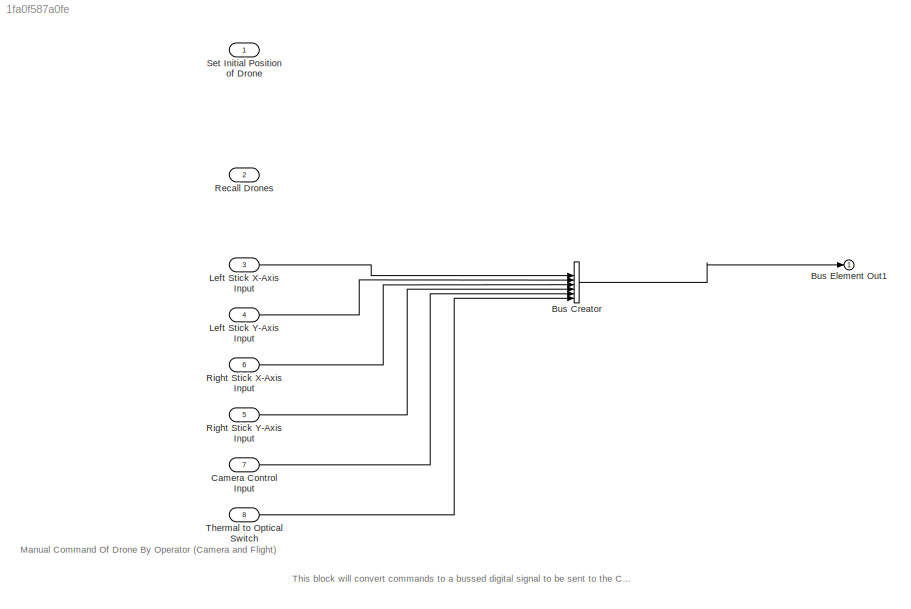
MODEL slx_1fa0f587a0fe
KIND model
CONFIG AbsTol = auto
CONFIG EnableMultiTasking = off
CONFIG FixedStep = auto
CONFIG MaxStep = auto
CONFIG MinStep = auto
CONFIG RelTol = 1e-3
CONFIG SampleTimeConstraint = Unconstrained
CONFIG SolverName = VariableStepAuto
CONFIG StartTime = 0.0
CONFIG StopTime = 10.0
BLOCK [BusCreator] Bus Creator
  DisplayOption = bar
  InheritFromInputs = on
  Inputs = 8
  Ports = [8, 1]
BLOCK [Outport] Bus Element Out1
BLOCK [Inport] Camera Control Input
  Port = 7
BLOCK [Inport] Left Stick X-Axis Input
  Port = 3
BLOCK [Inport] Left Stick Y-Axis Input
  Port = 4
BLOCK [Inport] Recall Drones
  Port = 2
BLOCK [Inport] Right Stick X-Axis Input
  Port = 6
BLOCK [Inport] Right Stick Y-Axis Input
  Port = 5
BLOCK [Inport] Set Initial Position of Drone
BLOCK [Inport] Thermal to Optical Switch
  Port = 8
ANNOTATION (root): Manual Command Of Drone By Operator (Camera and Flight)
ANNOTATION (root): This block will convert commands to a bussed digital signal to be sent to the Controller
LINE Bus Creator:1 -> Bus Element Out1:1
LINE Camera Control Input:1 -> Bus Creator:7
LINE Left Stick X-Axis Input:1 -> Bus Creator:3
LINE Left Stick Y-Axis Input:1 -> Bus Creator:4
LINE Right Stick X-Axis Input:1 -> Bus Creator:5
LINE Right Stick Y-Axis Input:1 -> Bus Creator:6
LINE Thermal to Optical Switch:1 -> Bus Creator:8
